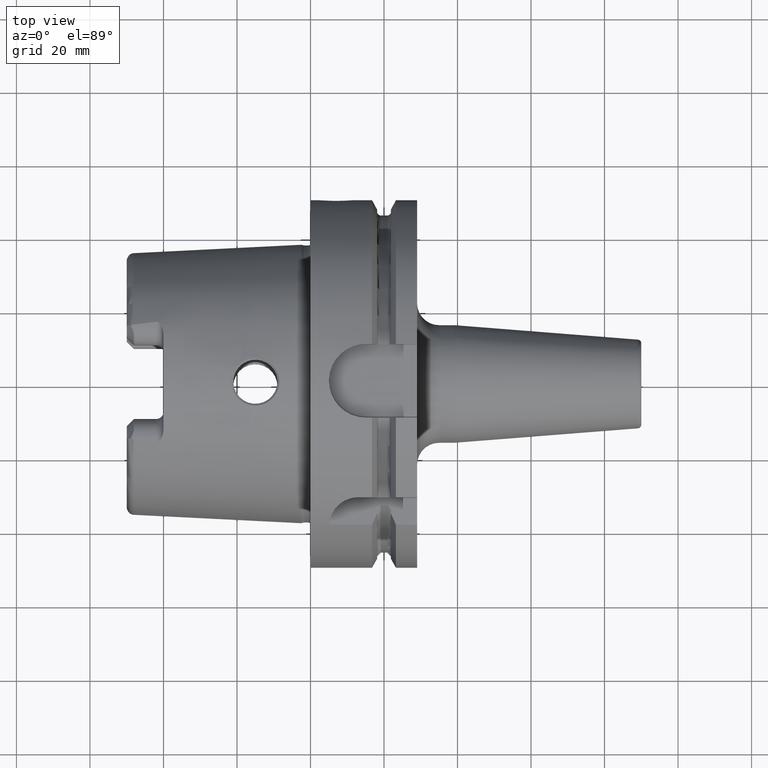
[diagram: clean part render]
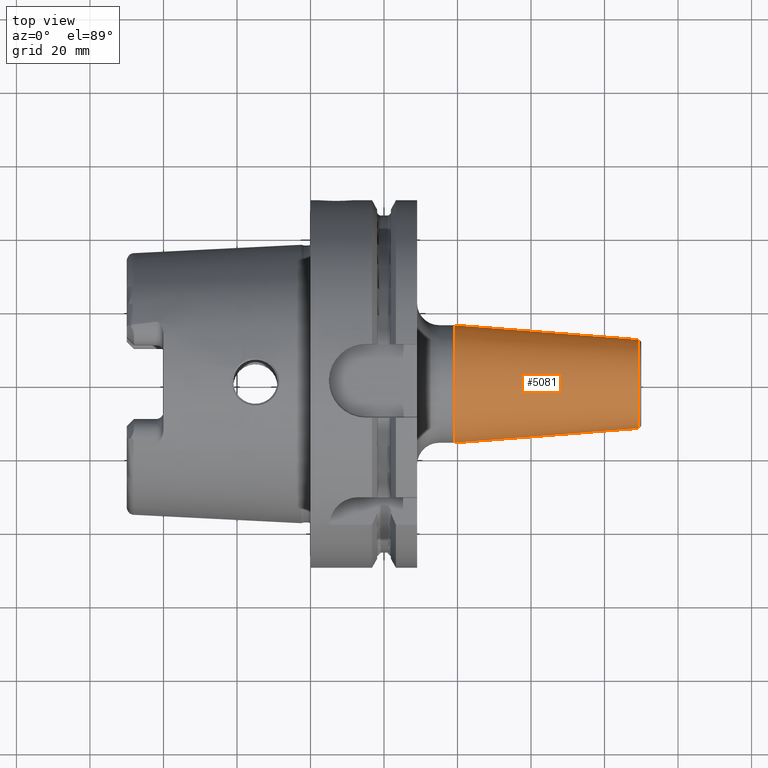
[diagram: same view with one face highlighted and labeled with its STEP entity id]
A machine part, top view. The second image highlights one B-rep face of the part: STEP entity #5081.
In plain terms, the highlighted conical surface has half-angle 4.5 deg.
Its self-contained STEP definition (entity closure, byte-faithful):
#1825=CARTESIAN_POINT('',(3.917518105530E1,0.E0,0.E0));
#1826=DIRECTION('',(1.E0,0.E0,0.E0));
#1827=DIRECTION('',(0.E0,1.E0,0.E0));
#1828=AXIS2_PLACEMENT_3D('',#1825,#1826,#1827);
#1853=DIRECTION('',(-9.969173337331E-1,7.845909572785E-2,0.E0));
#1854=VECTOR('',#1853,5.005758888107E1);
#1855=CARTESIAN_POINT('',(8.907845909573E1,1.207252684207E1,
-3.120001886283E-13));
#1856=LINE('',#1855,#1854);
#1857=DIRECTION('',(-9.969173337331E-1,-7.845909572785E-2,0.E0));
#1858=VECTOR('',#1857,5.005758888107E1);
#1859=CARTESIAN_POINT('',(8.907845909573E1,-1.207252684207E1,
3.116305740944E-13));
#1860=LINE('',#1859,#1858);
#1871=CARTESIAN_POINT('',(8.907845909573E1,0.E0,0.E0));
#1872=DIRECTION('',(-1.E0,0.E0,0.E0));
#1873=DIRECTION('',(0.E0,-1.E0,0.E0));
#1874=AXIS2_PLACEMENT_3D('',#1871,#1872,#1873);
#3129=CARTESIAN_POINT('',(3.917518105530E1,1.6E1,0.E0));
#3130=CARTESIAN_POINT('',(3.917518105530E1,-1.6E1,0.E0));
#3131=VERTEX_POINT('',#3129);
#3132=VERTEX_POINT('',#3130);
#3145=CARTESIAN_POINT('',(8.907845909573E1,1.207252684207E1,0.E0));
#3146=CARTESIAN_POINT('',(8.907845909573E1,-1.207252684207E1,0.E0));
#3147=VERTEX_POINT('',#3145);
#3148=VERTEX_POINT('',#3146);
#5070=CARTESIAN_POINT('',(6.412682007551E1,0.E0,0.E0));
#5071=DIRECTION('',(-1.E0,0.E0,0.E0));
#5072=DIRECTION('',(0.E0,1.E0,0.E0));
#5073=AXIS2_PLACEMENT_3D('',#5070,#5071,#5072);
#5074=CONICAL_SURFACE('',#5073,1.403626342104E1,4.5E0);
#5075=ORIENTED_EDGE('',*,*,#5061,.F.);
#5076=ORIENTED_EDGE('',*,*,#5036,.T.);
#5077=ORIENTED_EDGE('',*,*,#5006,.F.);
#5078=ORIENTED_EDGE('',*,*,#5033,.F.);
#5079=EDGE_LOOP('',(#5075,#5076,#5077,#5078));
#5080=FACE_OUTER_BOUND('',#5079,.F.);
#5081=ADVANCED_FACE('',(#5080),#5074,.T.);
#1829=CIRCLE('',#1828,1.6E1);
#1875=CIRCLE('',#1874,1.207252684207E1);
#5006=EDGE_CURVE('',#3131,#3132,#1829,.T.);
#5033=EDGE_CURVE('',#3147,#3131,#1856,.T.);
#5036=EDGE_CURVE('',#3148,#3132,#1860,.T.);
#5061=EDGE_CURVE('',#3148,#3147,#1875,.T.);